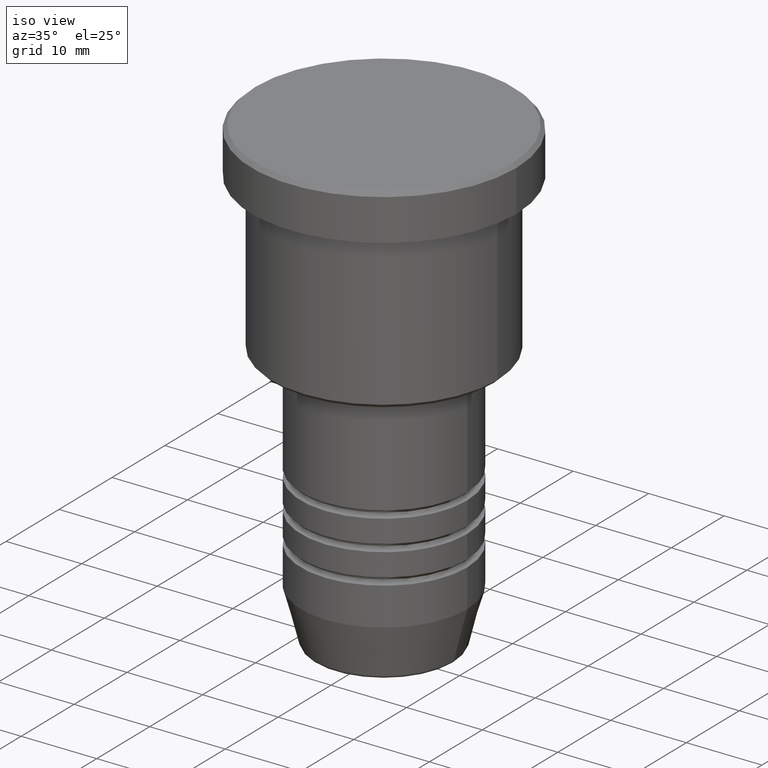
[diagram: clean part render]
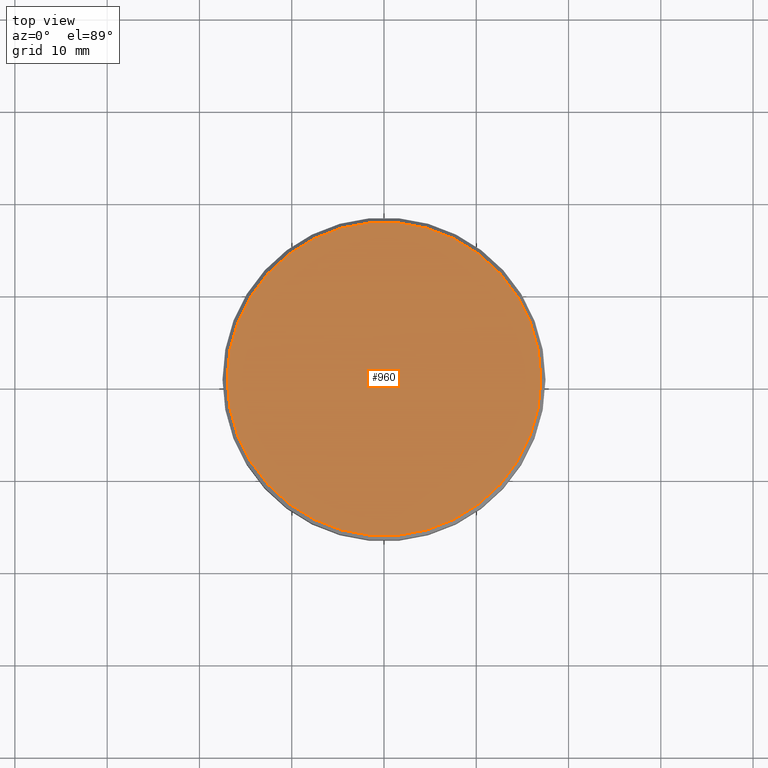
[diagram: tour spotlight — one face highlighted and labeled with its STEP entity id]
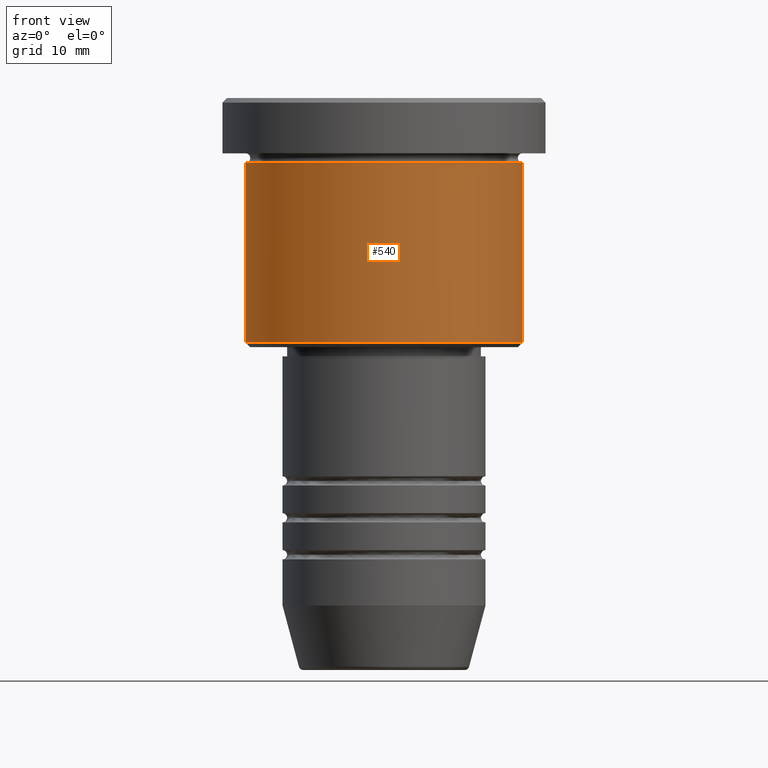
[diagram: tour spotlight — one face highlighted and labeled with its STEP entity id]
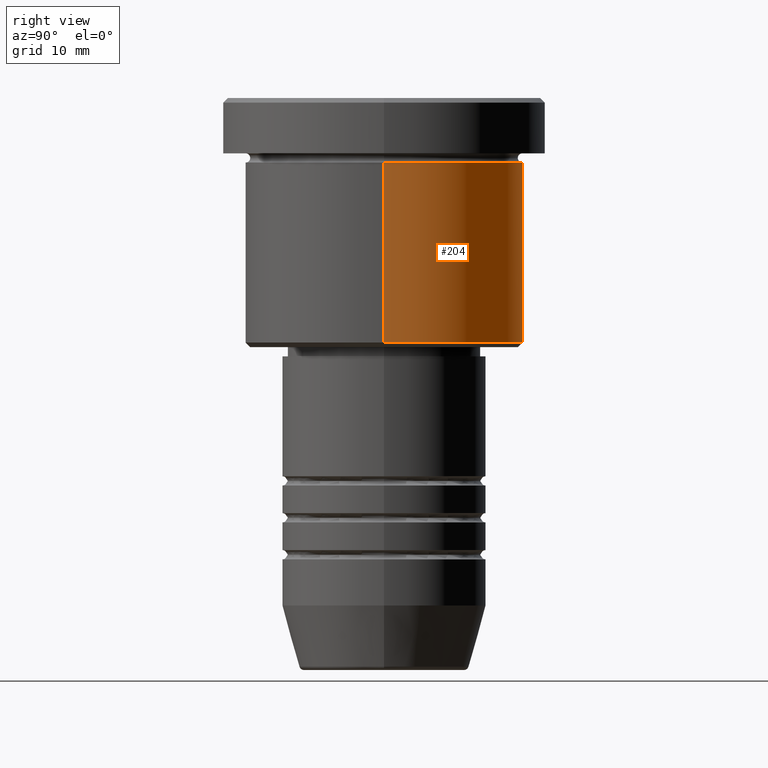
[diagram: tour spotlight — one face highlighted and labeled with its STEP entity id]
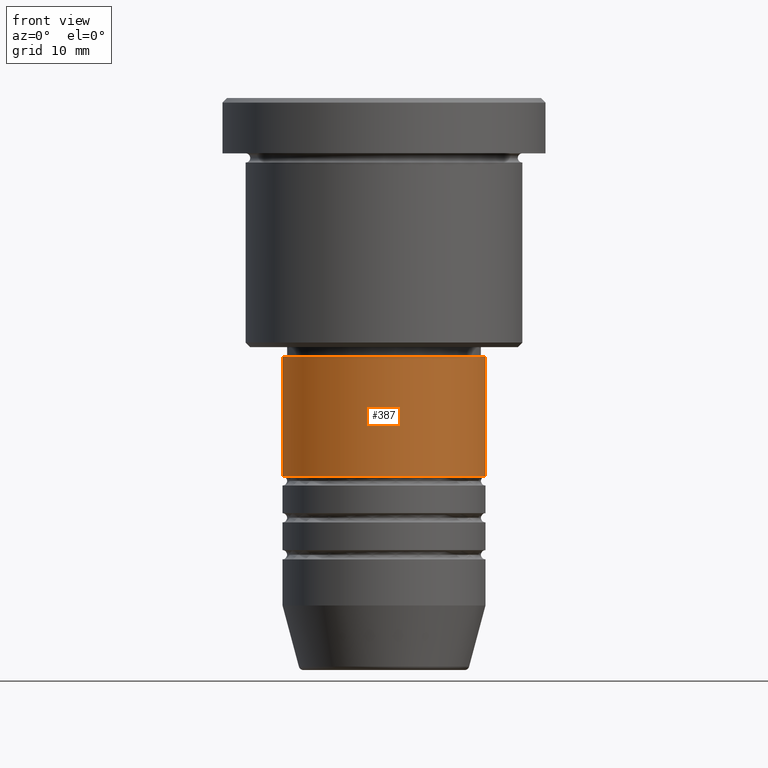
[diagram: tour spotlight — one face highlighted and labeled with its STEP entity id]
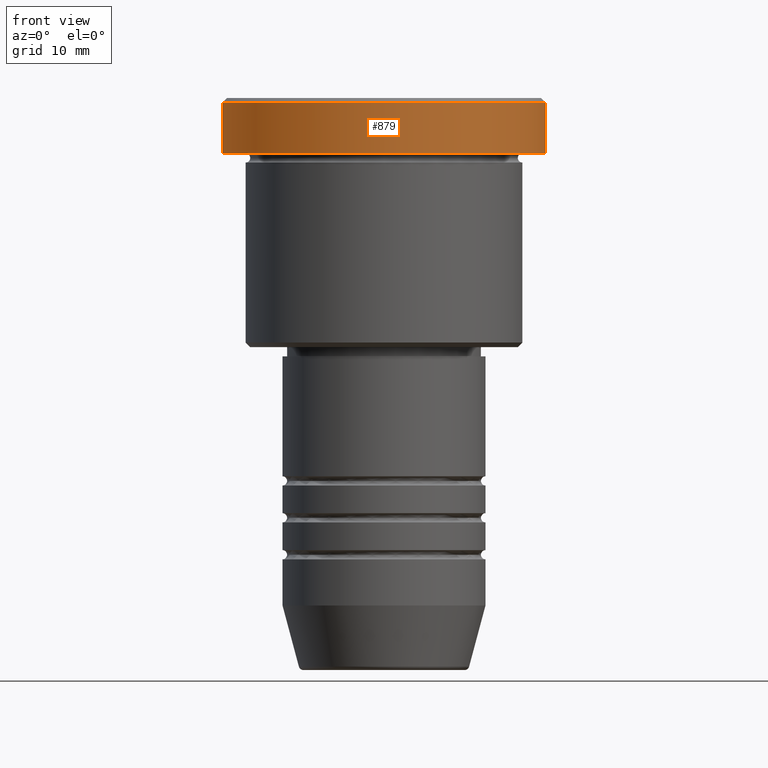
[diagram: tour spotlight — one face highlighted and labeled with its STEP entity id]
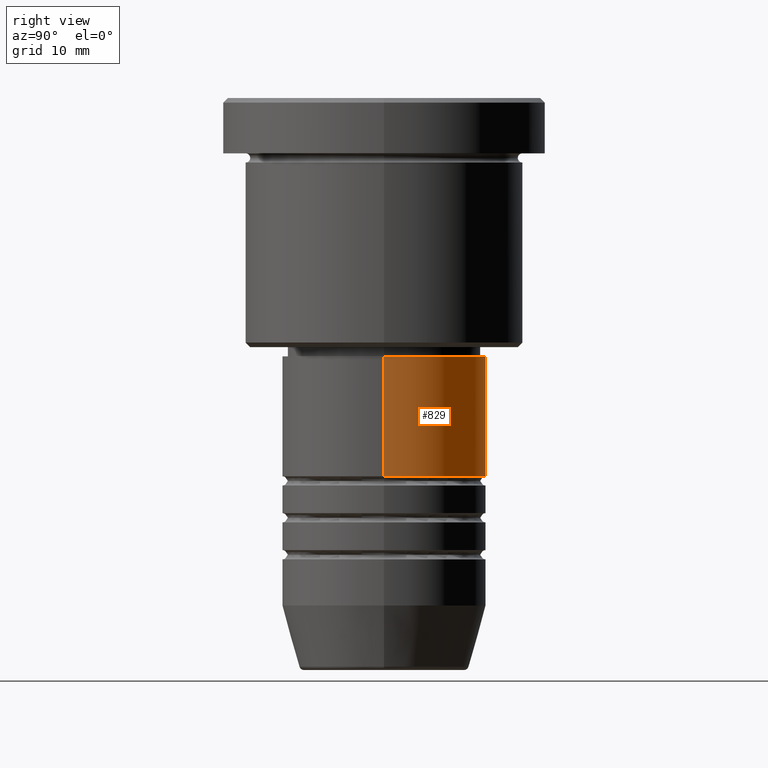
[diagram: tour spotlight — one face highlighted and labeled with its STEP entity id]
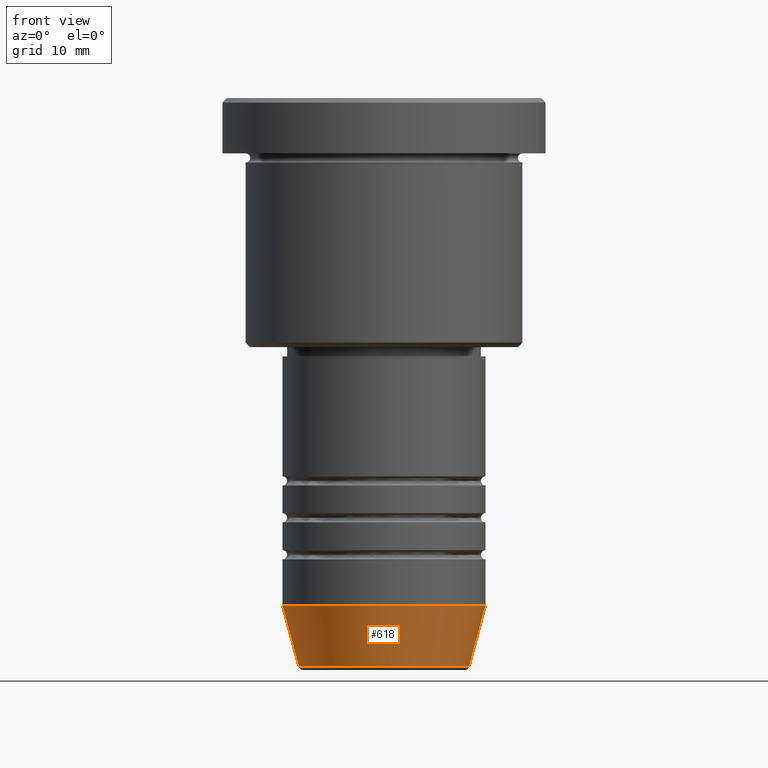
[diagram: tour spotlight — one face highlighted and labeled with its STEP entity id]
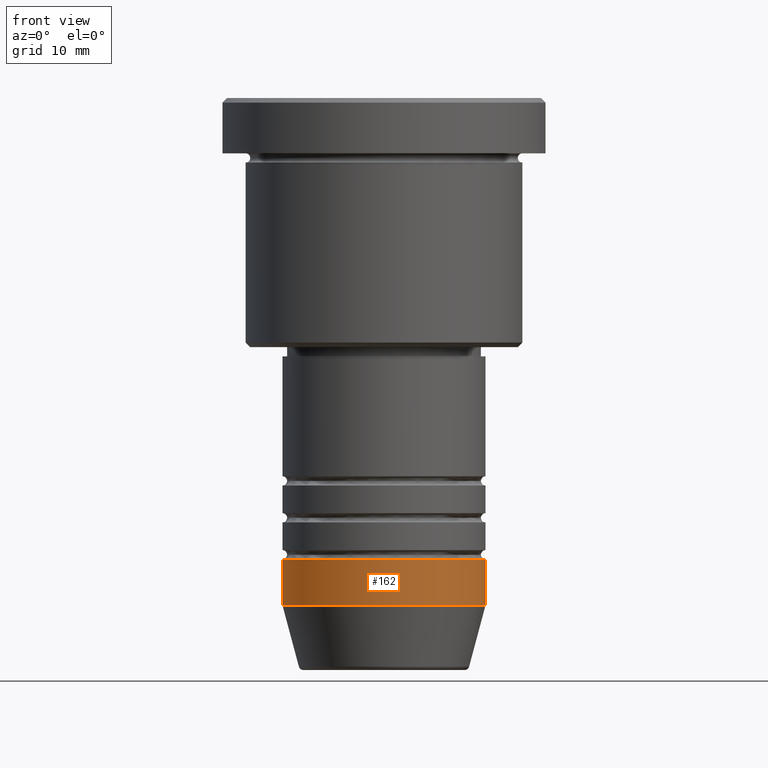
[diagram: tour spotlight — one face highlighted and labeled with its STEP entity id]
A machine part: a face-by-face anatomy tour. The part has 43 B-rep faces; the first image is the clean iso view, then the 8 largest visible faces are spotlighted one at a time (largest first), each with its STEP entity span.

Face 1 — top view, entity #960. In plain terms, the highlighted planar face has unit normal (0, -0, 1).
Definition (entity closure, byte-faithful):
#32 = CARTESIAN_POINT ( 'NONE',  ( 0.000000000000000000, 0.000000000000000000, 0.000000000000000000 ) ) ;
#40 = ORIENTED_EDGE ( 'NONE', *, *, #128, .T. ) ;
#45 = CARTESIAN_POINT ( 'NONE',  ( 0.000000000000000000, 0.000000000000000000, 0.000000000000000000 ) ) ;
#128 = EDGE_CURVE ( 'NONE', #741, #779, #1009, .T. ) ;
#155 = CARTESIAN_POINT ( 'NONE',  ( 0.000000000000000000, 0.000000000000000000, 0.000000000000000000 ) ) ;
#178 = EDGE_LOOP ( 'NONE', ( #1047, #40 ) ) ;
#235 = AXIS2_PLACEMENT_3D ( 'NONE', #32, #330, #679 ) ;
#295 = DIRECTION ( 'NONE',  ( 1.000000000000000000, 0.000000000000000000, 0.000000000000000000 ) ) ;
#324 = FACE_OUTER_BOUND ( 'NONE', #178, .T. ) ;
#330 = DIRECTION ( 'NONE',  ( -0.000000000000000000, -0.000000000000000000, 1.000000000000000000 ) ) ;
#352 = CARTESIAN_POINT ( 'NONE',  ( -16.99999999999999289, 0.000000000000000000, 0.000000000000000000 ) ) ;
#366 = AXIS2_PLACEMENT_3D ( 'NONE', #45, #757, #1115 ) ;
#648 = AXIS2_PLACEMENT_3D ( 'NONE', #155, #705, #295 ) ;
#679 = DIRECTION ( 'NONE',  ( 1.000000000000000000, 0.000000000000000000, 0.000000000000000000 ) ) ;
#705 = DIRECTION ( 'NONE',  ( -0.000000000000000000, -0.000000000000000000, 1.000000000000000000 ) ) ;
#741 = VERTEX_POINT ( 'NONE', #776 ) ;
#757 = DIRECTION ( 'NONE',  ( 0.000000000000000000, -0.000000000000000000, 1.000000000000000000 ) ) ;
#776 = CARTESIAN_POINT ( 'NONE',  ( 16.99999999999999289, 2.112515728529184067E-15, 0.000000000000000000 ) ) ;
#779 = VERTEX_POINT ( 'NONE', #352 ) ;
#939 = PLANE ( 'NONE',  #366 ) ;
#960 = ADVANCED_FACE ( 'NONE', ( #324 ), #939, .T. ) ;
#966 = EDGE_CURVE ( 'NONE', #779, #741, #989, .T. ) ;
#989 = CIRCLE ( 'NONE', #235, 16.99999999999999289 ) ;
#1009 = CIRCLE ( 'NONE', #648, 16.99999999999999289 ) ;
#1047 = ORIENTED_EDGE ( 'NONE', *, *, #966, .T. ) ;
#1115 = DIRECTION ( 'NONE',  ( 1.000000000000000000, 0.000000000000000000, 0.000000000000000000 ) ) ;

Face 2 — front view, entity #540. In plain terms, the highlighted cylindrical surface (partial cylindrical patch) has radius 15 mm, axis along (-0, -0, 1).
Definition (entity closure, byte-faithful):
#15 = VECTOR ( 'NONE', #1182, 1000.000000000000000 ) ;
#22 = DIRECTION ( 'NONE',  ( -0.000000000000000000, -0.000000000000000000, 1.000000000000000000 ) ) ;
#46 = CARTESIAN_POINT ( 'NONE',  ( 0.000000000000000000, 0.000000000000000000, -26.49999999999997868 ) ) ;
#64 = DIRECTION ( 'NONE',  ( -0.000000000000000000, -0.000000000000000000, 1.000000000000000000 ) ) ;
#79 = FACE_OUTER_BOUND ( 'NONE', #753, .T. ) ;
#83 = CARTESIAN_POINT ( 'NONE',  ( -15.00000000000000000, 1.836970198721029589E-15, -6.999999999999995559 ) ) ;
#113 = EDGE_CURVE ( 'NONE', #143, #842, #238, .T. ) ;
#143 = VERTEX_POINT ( 'NONE', #659 ) ;
#149 = AXIS2_PLACEMENT_3D ( 'NONE', #158, #64, #1068 ) ;
#158 = CARTESIAN_POINT ( 'NONE',  ( 0.000000000000000000, 0.000000000000000000, 0.000000000000000000 ) ) ;
#166 = CARTESIAN_POINT ( 'NONE',  ( 15.00000000000000000, 0.000000000000000000, -6.999999999999995559 ) ) ;
#207 = CARTESIAN_POINT ( 'NONE',  ( -15.00000000000000000, 1.836970198721029589E-15, 0.000000000000000000 ) ) ;
#238 = LINE ( 'NONE', #445, #15 ) ;
#286 = CIRCLE ( 'NONE', #545, 15.00000000000000000 ) ;
#307 = EDGE_CURVE ( 'NONE', #542, #842, #286, .T. ) ;
#402 = CIRCLE ( 'NONE', #1117, 15.00000000000000000 ) ;
#445 = CARTESIAN_POINT ( 'NONE',  ( 15.00000000000000000, 0.000000000000000000, 0.000000000000000000 ) ) ;
#537 = CYLINDRICAL_SURFACE ( 'NONE', #149, 15.00000000000000000 ) ;
#540 = ADVANCED_FACE ( 'NONE', ( #79 ), #537, .T. ) ;
#542 = VERTEX_POINT ( 'NONE', #83 ) ;
#545 = AXIS2_PLACEMENT_3D ( 'NONE', #649, #22, #568 ) ;
#568 = DIRECTION ( 'NONE',  ( 1.000000000000000000, 0.000000000000000000, 0.000000000000000000 ) ) ;
#604 = ORIENTED_EDGE ( 'NONE', *, *, #307, .F. ) ;
#649 = CARTESIAN_POINT ( 'NONE',  ( 0.000000000000000000, 0.000000000000000000, -6.999999999999995559 ) ) ;
#651 = DIRECTION ( 'NONE',  ( -0.000000000000000000, -0.000000000000000000, 1.000000000000000000 ) ) ;
#659 = CARTESIAN_POINT ( 'NONE',  ( 15.00000000000000000, 0.000000000000000000, -26.49999999999997868 ) ) ;
#664 = ORIENTED_EDGE ( 'NONE', *, *, #113, .T. ) ;
#692 = EDGE_CURVE ( 'NONE', #1104, #143, #402, .T. ) ;
#753 = EDGE_LOOP ( 'NONE', ( #1073, #1094, #664, #604 ) ) ;
#755 = CARTESIAN_POINT ( 'NONE',  ( -15.00000000000000000, 1.836970198721029589E-15, -26.49999999999997868 ) ) ;
#842 = VERTEX_POINT ( 'NONE', #166 ) ;
#944 = DIRECTION ( 'NONE',  ( -1.000000000000000000, 0.000000000000000000, 0.000000000000000000 ) ) ;
#1041 = EDGE_CURVE ( 'NONE', #1104, #542, #1090, .T. ) ;
#1048 = DIRECTION ( 'NONE',  ( -0.000000000000000000, -0.000000000000000000, 1.000000000000000000 ) ) ;
#1068 = DIRECTION ( 'NONE',  ( 1.000000000000000000, 0.000000000000000000, 0.000000000000000000 ) ) ;
#1073 = ORIENTED_EDGE ( 'NONE', *, *, #1041, .F. ) ;
#1081 = VECTOR ( 'NONE', #651, 1000.000000000000000 ) ;
#1090 = LINE ( 'NONE', #207, #1081 ) ;
#1094 = ORIENTED_EDGE ( 'NONE', *, *, #692, .T. ) ;
#1104 = VERTEX_POINT ( 'NONE', #755 ) ;
#1117 = AXIS2_PLACEMENT_3D ( 'NONE', #46, #1048, #944 ) ;
#1182 = DIRECTION ( 'NONE',  ( -0.000000000000000000, -0.000000000000000000, 1.000000000000000000 ) ) ;

Face 3 — right view, entity #204. In plain terms, the highlighted cylindrical surface (partial cylindrical patch) has radius 15 mm, axis along (-0, -0, 1).
Definition (entity closure, byte-faithful):
#15 = VECTOR ( 'NONE', #1182, 1000.000000000000000 ) ;
#31 = ORIENTED_EDGE ( 'NONE', *, *, #357, .F. ) ;
#34 = CIRCLE ( 'NONE', #1098, 15.00000000000000000 ) ;
#83 = CARTESIAN_POINT ( 'NONE',  ( -15.00000000000000000, 1.836970198721029589E-15, -6.999999999999995559 ) ) ;
#111 = DIRECTION ( 'NONE',  ( 1.000000000000000000, 0.000000000000000000, 0.000000000000000000 ) ) ;
#113 = EDGE_CURVE ( 'NONE', #143, #842, #238, .T. ) ;
#143 = VERTEX_POINT ( 'NONE', #659 ) ;
#159 = ORIENTED_EDGE ( 'NONE', *, *, #783, .T. ) ;
#161 = DIRECTION ( 'NONE',  ( -1.000000000000000000, 0.000000000000000000, 0.000000000000000000 ) ) ;
#166 = CARTESIAN_POINT ( 'NONE',  ( 15.00000000000000000, 0.000000000000000000, -6.999999999999995559 ) ) ;
#204 = ADVANCED_FACE ( 'NONE', ( #271 ), #710, .T. ) ;
#207 = CARTESIAN_POINT ( 'NONE',  ( -15.00000000000000000, 1.836970198721029589E-15, 0.000000000000000000 ) ) ;
#220 = DIRECTION ( 'NONE',  ( -0.000000000000000000, -0.000000000000000000, 1.000000000000000000 ) ) ;
#238 = LINE ( 'NONE', #445, #15 ) ;
#271 = FACE_OUTER_BOUND ( 'NONE', #302, .T. ) ;
#302 = EDGE_LOOP ( 'NONE', ( #159, #642, #31, #1015 ) ) ;
#357 = EDGE_CURVE ( 'NONE', #842, #542, #701, .T. ) ;
#428 = CARTESIAN_POINT ( 'NONE',  ( 0.000000000000000000, 0.000000000000000000, -26.49999999999997868 ) ) ;
#435 = AXIS2_PLACEMENT_3D ( 'NONE', #1028, #220, #111 ) ;
#445 = CARTESIAN_POINT ( 'NONE',  ( 15.00000000000000000, 0.000000000000000000, 0.000000000000000000 ) ) ;
#526 = CARTESIAN_POINT ( 'NONE',  ( 0.000000000000000000, 0.000000000000000000, 0.000000000000000000 ) ) ;
#539 = DIRECTION ( 'NONE',  ( -0.000000000000000000, -0.000000000000000000, 1.000000000000000000 ) ) ;
#542 = VERTEX_POINT ( 'NONE', #83 ) ;
#642 = ORIENTED_EDGE ( 'NONE', *, *, #1041, .T. ) ;
#651 = DIRECTION ( 'NONE',  ( -0.000000000000000000, -0.000000000000000000, 1.000000000000000000 ) ) ;
#659 = CARTESIAN_POINT ( 'NONE',  ( 15.00000000000000000, 0.000000000000000000, -26.49999999999997868 ) ) ;
#701 = CIRCLE ( 'NONE', #435, 15.00000000000000000 ) ;
#710 = CYLINDRICAL_SURFACE ( 'NONE', #782, 15.00000000000000000 ) ;
#755 = CARTESIAN_POINT ( 'NONE',  ( -15.00000000000000000, 1.836970198721029589E-15, -26.49999999999997868 ) ) ;
#782 = AXIS2_PLACEMENT_3D ( 'NONE', #526, #539, #1070 ) ;
#783 = EDGE_CURVE ( 'NONE', #143, #1104, #34, .T. ) ;
#842 = VERTEX_POINT ( 'NONE', #166 ) ;
#1015 = ORIENTED_EDGE ( 'NONE', *, *, #113, .F. ) ;
#1028 = CARTESIAN_POINT ( 'NONE',  ( 0.000000000000000000, 0.000000000000000000, -6.999999999999995559 ) ) ;
#1041 = EDGE_CURVE ( 'NONE', #1104, #542, #1090, .T. ) ;
#1070 = DIRECTION ( 'NONE',  ( 1.000000000000000000, 0.000000000000000000, 0.000000000000000000 ) ) ;
#1072 = DIRECTION ( 'NONE',  ( -0.000000000000000000, -0.000000000000000000, 1.000000000000000000 ) ) ;
#1081 = VECTOR ( 'NONE', #651, 1000.000000000000000 ) ;
#1090 = LINE ( 'NONE', #207, #1081 ) ;
#1098 = AXIS2_PLACEMENT_3D ( 'NONE', #428, #1072, #161 ) ;
#1104 = VERTEX_POINT ( 'NONE', #755 ) ;
#1182 = DIRECTION ( 'NONE',  ( -0.000000000000000000, -0.000000000000000000, 1.000000000000000000 ) ) ;

Face 4 — front view, entity #387. In plain terms, the highlighted cylindrical surface (partial cylindrical patch) has radius 11 mm, axis along (-0, -0, 1).
Definition (entity closure, byte-faithful):
#73 = EDGE_CURVE ( 'NONE', #1097, #736, #417, .T. ) ;
#119 = CARTESIAN_POINT ( 'NONE',  ( 11.00000000000000000, 0.000000000000000000, -40.99999999999989342 ) ) ;
#130 = CARTESIAN_POINT ( 'NONE',  ( -11.00000000000000000, 1.347111479062088405E-15, 0.000000000000000000 ) ) ;
#191 = AXIS2_PLACEMENT_3D ( 'NONE', #1038, #948, #875 ) ;
#219 = VECTOR ( 'NONE', #242, 1000.000000000000000 ) ;
#222 = EDGE_LOOP ( 'NONE', ( #276, #847, #947, #687 ) ) ;
#230 = FACE_OUTER_BOUND ( 'NONE', #222, .T. ) ;
#239 = CARTESIAN_POINT ( 'NONE',  ( 0.000000000000000000, 0.000000000000000000, 0.000000000000000000 ) ) ;
#242 = DIRECTION ( 'NONE',  ( -0.000000000000000000, -0.000000000000000000, 1.000000000000000000 ) ) ;
#276 = ORIENTED_EDGE ( 'NONE', *, *, #393, .F. ) ;
#341 = DIRECTION ( 'NONE',  ( -0.000000000000000000, -0.000000000000000000, 1.000000000000000000 ) ) ;
#387 = ADVANCED_FACE ( 'NONE', ( #230 ), #872, .T. ) ;
#393 = EDGE_CURVE ( 'NONE', #1110, #1052, #681, .T. ) ;
#417 = LINE ( 'NONE', #858, #219 ) ;
#475 = AXIS2_PLACEMENT_3D ( 'NONE', #239, #341, #778 ) ;
#512 = CIRCLE ( 'NONE', #191, 11.00000000000000000 ) ;
#521 = CARTESIAN_POINT ( 'NONE',  ( 0.000000000000000000, 0.000000000000000000, -40.99999999999989342 ) ) ;
#524 = EDGE_CURVE ( 'NONE', #1110, #1097, #868, .T. ) ;
#599 = DIRECTION ( 'NONE',  ( -0.000000000000000000, -0.000000000000000000, 1.000000000000000000 ) ) ;
#665 = AXIS2_PLACEMENT_3D ( 'NONE', #521, #976, #802 ) ;
#681 = LINE ( 'NONE', #130, #969 ) ;
#687 = ORIENTED_EDGE ( 'NONE', *, *, #711, .F. ) ;
#711 = EDGE_CURVE ( 'NONE', #1052, #736, #512, .T. ) ;
#736 = VERTEX_POINT ( 'NONE', #1146 ) ;
#778 = DIRECTION ( 'NONE',  ( 1.000000000000000000, 0.000000000000000000, 0.000000000000000000 ) ) ;
#802 = DIRECTION ( 'NONE',  ( 1.000000000000000000, 0.000000000000000000, 0.000000000000000000 ) ) ;
#825 = CARTESIAN_POINT ( 'NONE',  ( -11.00000000000000000, 1.347111479062088405E-15, -27.99999999999999645 ) ) ;
#847 = ORIENTED_EDGE ( 'NONE', *, *, #524, .T. ) ;
#858 = CARTESIAN_POINT ( 'NONE',  ( 11.00000000000000000, 0.000000000000000000, 0.000000000000000000 ) ) ;
#868 = CIRCLE ( 'NONE', #665, 11.00000000000000000 ) ;
#872 = CYLINDRICAL_SURFACE ( 'NONE', #475, 11.00000000000000000 ) ;
#875 = DIRECTION ( 'NONE',  ( 1.000000000000000000, 0.000000000000000000, 0.000000000000000000 ) ) ;
#947 = ORIENTED_EDGE ( 'NONE', *, *, #73, .T. ) ;
#948 = DIRECTION ( 'NONE',  ( -0.000000000000000000, -0.000000000000000000, 1.000000000000000000 ) ) ;
#969 = VECTOR ( 'NONE', #599, 1000.000000000000000 ) ;
#976 = DIRECTION ( 'NONE',  ( -0.000000000000000000, -0.000000000000000000, 1.000000000000000000 ) ) ;
#1002 = CARTESIAN_POINT ( 'NONE',  ( -11.00000000000000000, 1.347111479062088405E-15, -40.99999999999989342 ) ) ;
#1038 = CARTESIAN_POINT ( 'NONE',  ( 0.000000000000000000, 0.000000000000000000, -27.99999999999999645 ) ) ;
#1052 = VERTEX_POINT ( 'NONE', #825 ) ;
#1097 = VERTEX_POINT ( 'NONE', #119 ) ;
#1110 = VERTEX_POINT ( 'NONE', #1002 ) ;
#1146 = CARTESIAN_POINT ( 'NONE',  ( 11.00000000000000000, 0.000000000000000000, -27.99999999999999645 ) ) ;

Face 5 — front view, entity #879. In plain terms, the highlighted cylindrical surface (partial cylindrical patch) has radius 17.5 mm, axis along (-0, -0, 1).
Definition (entity closure, byte-faithful):
#5 = DIRECTION ( 'NONE',  ( 1.000000000000000000, 0.000000000000000000, 0.000000000000000000 ) ) ;
#33 = CIRCLE ( 'NONE', #898, 17.50000000000000000 ) ;
#44 = VERTEX_POINT ( 'NONE', #47 ) ;
#47 = CARTESIAN_POINT ( 'NONE',  ( -17.50000000000000000, 2.143131898507868248E-15, -0.5000000000000073275 ) ) ;
#150 = LINE ( 'NONE', #520, #932 ) ;
#171 = CIRCLE ( 'NONE', #646, 17.50000000000000000 ) ;
#175 = FACE_OUTER_BOUND ( 'NONE', #631, .T. ) ;
#205 = ORIENTED_EDGE ( 'NONE', *, *, #856, .T. ) ;
#300 = CARTESIAN_POINT ( 'NONE',  ( 0.000000000000000000, 0.000000000000000000, -0.5000000000000073275 ) ) ;
#316 = CARTESIAN_POINT ( 'NONE',  ( 0.000000000000000000, 0.000000000000000000, -5.999999999999995559 ) ) ;
#318 = LINE ( 'NONE', #397, #424 ) ;
#392 = ORIENTED_EDGE ( 'NONE', *, *, #1147, .T. ) ;
#397 = CARTESIAN_POINT ( 'NONE',  ( -17.50000000000000000, 2.143131898507868248E-15, 0.000000000000000000 ) ) ;
#423 = CARTESIAN_POINT ( 'NONE',  ( 17.50000000000000000, 0.000000000000000000, -0.5000000000000073275 ) ) ;
#424 = VECTOR ( 'NONE', #1131, 1000.000000000000000 ) ;
#429 = EDGE_CURVE ( 'NONE', #624, #433, #33, .T. ) ;
#431 = DIRECTION ( 'NONE',  ( -0.000000000000000000, -0.000000000000000000, 1.000000000000000000 ) ) ;
#433 = VERTEX_POINT ( 'NONE', #676 ) ;
#499 = DIRECTION ( 'NONE',  ( 1.000000000000000000, 0.000000000000000000, 0.000000000000000000 ) ) ;
#503 = CARTESIAN_POINT ( 'NONE',  ( -17.50000000000000000, 2.143131898507868248E-15, -5.999999999999995559 ) ) ;
#520 = CARTESIAN_POINT ( 'NONE',  ( 17.50000000000000000, 0.000000000000000000, 0.000000000000000000 ) ) ;
#535 = DIRECTION ( 'NONE',  ( -0.000000000000000000, -0.000000000000000000, 1.000000000000000000 ) ) ;
#624 = VERTEX_POINT ( 'NONE', #503 ) ;
#631 = EDGE_LOOP ( 'NONE', ( #733, #729, #205, #392 ) ) ;
#646 = AXIS2_PLACEMENT_3D ( 'NONE', #300, #929, #5 ) ;
#669 = AXIS2_PLACEMENT_3D ( 'NONE', #901, #535, #906 ) ;
#676 = CARTESIAN_POINT ( 'NONE',  ( 17.50000000000000000, 0.000000000000000000, -5.999999999999995559 ) ) ;
#712 = CYLINDRICAL_SURFACE ( 'NONE', #669, 17.50000000000000000 ) ;
#729 = ORIENTED_EDGE ( 'NONE', *, *, #429, .T. ) ;
#733 = ORIENTED_EDGE ( 'NONE', *, *, #930, .F. ) ;
#746 = VERTEX_POINT ( 'NONE', #423 ) ;
#856 = EDGE_CURVE ( 'NONE', #433, #746, #150, .T. ) ;
#879 = ADVANCED_FACE ( 'NONE', ( #175 ), #712, .T. ) ;
#898 = AXIS2_PLACEMENT_3D ( 'NONE', #316, #1050, #499 ) ;
#901 = CARTESIAN_POINT ( 'NONE',  ( 0.000000000000000000, 0.000000000000000000, 0.000000000000000000 ) ) ;
#906 = DIRECTION ( 'NONE',  ( 1.000000000000000000, 0.000000000000000000, 0.000000000000000000 ) ) ;
#929 = DIRECTION ( 'NONE',  ( 0.000000000000000000, 0.000000000000000000, -1.000000000000000000 ) ) ;
#930 = EDGE_CURVE ( 'NONE', #624, #44, #318, .T. ) ;
#932 = VECTOR ( 'NONE', #431, 1000.000000000000000 ) ;
#1050 = DIRECTION ( 'NONE',  ( -0.000000000000000000, -0.000000000000000000, 1.000000000000000000 ) ) ;
#1131 = DIRECTION ( 'NONE',  ( -0.000000000000000000, -0.000000000000000000, 1.000000000000000000 ) ) ;
#1147 = EDGE_CURVE ( 'NONE', #746, #44, #171, .T. ) ;

Face 6 — right view, entity #829. In plain terms, the highlighted cylindrical surface (partial cylindrical patch) has radius 11 mm, axis along (-0, -0, 1).
Definition (entity closure, byte-faithful):
#73 = EDGE_CURVE ( 'NONE', #1097, #736, #417, .T. ) ;
#119 = CARTESIAN_POINT ( 'NONE',  ( 11.00000000000000000, 0.000000000000000000, -40.99999999999989342 ) ) ;
#130 = CARTESIAN_POINT ( 'NONE',  ( -11.00000000000000000, 1.347111479062088405E-15, 0.000000000000000000 ) ) ;
#219 = VECTOR ( 'NONE', #242, 1000.000000000000000 ) ;
#234 = CARTESIAN_POINT ( 'NONE',  ( 0.000000000000000000, 0.000000000000000000, -40.99999999999989342 ) ) ;
#242 = DIRECTION ( 'NONE',  ( -0.000000000000000000, -0.000000000000000000, 1.000000000000000000 ) ) ;
#248 = ORIENTED_EDGE ( 'NONE', *, *, #73, .F. ) ;
#319 = DIRECTION ( 'NONE',  ( -0.000000000000000000, -0.000000000000000000, 1.000000000000000000 ) ) ;
#326 = DIRECTION ( 'NONE',  ( -0.000000000000000000, -0.000000000000000000, 1.000000000000000000 ) ) ;
#393 = EDGE_CURVE ( 'NONE', #1110, #1052, #681, .T. ) ;
#411 = CARTESIAN_POINT ( 'NONE',  ( 0.000000000000000000, 0.000000000000000000, -27.99999999999999645 ) ) ;
#417 = LINE ( 'NONE', #858, #219 ) ;
#443 = FACE_OUTER_BOUND ( 'NONE', #682, .T. ) ;
#467 = ORIENTED_EDGE ( 'NONE', *, *, #702, .T. ) ;
#599 = DIRECTION ( 'NONE',  ( -0.000000000000000000, -0.000000000000000000, 1.000000000000000000 ) ) ;
#680 = DIRECTION ( 'NONE',  ( 1.000000000000000000, 0.000000000000000000, 0.000000000000000000 ) ) ;
#681 = LINE ( 'NONE', #130, #969 ) ;
#682 = EDGE_LOOP ( 'NONE', ( #467, #803, #1167, #248 ) ) ;
#683 = DIRECTION ( 'NONE',  ( 1.000000000000000000, 0.000000000000000000, 0.000000000000000000 ) ) ;
#702 = EDGE_CURVE ( 'NONE', #1097, #1110, #865, .T. ) ;
#726 = EDGE_CURVE ( 'NONE', #736, #1052, #1080, .T. ) ;
#736 = VERTEX_POINT ( 'NONE', #1146 ) ;
#780 = AXIS2_PLACEMENT_3D ( 'NONE', #808, #1067, #1169 ) ;
#800 = CYLINDRICAL_SURFACE ( 'NONE', #780, 11.00000000000000000 ) ;
#803 = ORIENTED_EDGE ( 'NONE', *, *, #393, .T. ) ;
#808 = CARTESIAN_POINT ( 'NONE',  ( 0.000000000000000000, 0.000000000000000000, 0.000000000000000000 ) ) ;
#825 = CARTESIAN_POINT ( 'NONE',  ( -11.00000000000000000, 1.347111479062088405E-15, -27.99999999999999645 ) ) ;
#829 = ADVANCED_FACE ( 'NONE', ( #443 ), #800, .T. ) ;
#840 = AXIS2_PLACEMENT_3D ( 'NONE', #234, #319, #680 ) ;
#858 = CARTESIAN_POINT ( 'NONE',  ( 11.00000000000000000, 0.000000000000000000, 0.000000000000000000 ) ) ;
#865 = CIRCLE ( 'NONE', #840, 11.00000000000000000 ) ;
#969 = VECTOR ( 'NONE', #599, 1000.000000000000000 ) ;
#1002 = CARTESIAN_POINT ( 'NONE',  ( -11.00000000000000000, 1.347111479062088405E-15, -40.99999999999989342 ) ) ;
#1052 = VERTEX_POINT ( 'NONE', #825 ) ;
#1067 = DIRECTION ( 'NONE',  ( -0.000000000000000000, -0.000000000000000000, 1.000000000000000000 ) ) ;
#1080 = CIRCLE ( 'NONE', #1155, 11.00000000000000000 ) ;
#1097 = VERTEX_POINT ( 'NONE', #119 ) ;
#1110 = VERTEX_POINT ( 'NONE', #1002 ) ;
#1146 = CARTESIAN_POINT ( 'NONE',  ( 11.00000000000000000, 0.000000000000000000, -27.99999999999999645 ) ) ;
#1155 = AXIS2_PLACEMENT_3D ( 'NONE', #411, #326, #683 ) ;
#1167 = ORIENTED_EDGE ( 'NONE', *, *, #726, .F. ) ;
#1169 = DIRECTION ( 'NONE',  ( 1.000000000000000000, 0.000000000000000000, 0.000000000000000000 ) ) ;

Face 7 — front view, entity #618. In plain terms, the highlighted conical surface has half-angle 15 deg.
Definition (entity closure, byte-faithful):
#133 = CARTESIAN_POINT ( 'NONE',  ( 9.223655072137185940, 0.000000000000000000, -61.62940952255126348 ) ) ;
#231 = VERTEX_POINT ( 'NONE', #818 ) ;
#252 = CONICAL_SURFACE ( 'NONE', #347, 11.00000000000000000, 0.2617993877991502960 ) ;
#267 = VECTOR ( 'NONE', #1126, 1000.000000000000114 ) ;
#294 = EDGE_LOOP ( 'NONE', ( #806, #770, #620, #1152 ) ) ;
#311 = CIRCLE ( 'NONE', #689, 9.223655072137185940 ) ;
#347 = AXIS2_PLACEMENT_3D ( 'NONE', #880, #758, #962 ) ;
#418 = DIRECTION ( 'NONE',  ( 1.000000000000000000, 0.000000000000000000, 0.000000000000000000 ) ) ;
#422 = EDGE_CURVE ( 'NONE', #1106, #231, #511, .T. ) ;
#432 = CARTESIAN_POINT ( 'NONE',  ( 11.00000000000000000, 0.000000000000000000, -55.00000000000000000 ) ) ;
#453 = VECTOR ( 'NONE', #708, 1000.000000000000114 ) ;
#502 = DIRECTION ( 'NONE',  ( -0.000000000000000000, -0.000000000000000000, 1.000000000000000000 ) ) ;
#511 = CIRCLE ( 'NONE', #1178, 11.00000000000000000 ) ;
#544 = EDGE_CURVE ( 'NONE', #955, #231, #634, .T. ) ;
#576 = CARTESIAN_POINT ( 'NONE',  ( -9.223655072137185940, 1.238341722557647004E-15, -61.62940952255126348 ) ) ;
#582 = LINE ( 'NONE', #768, #267 ) ;
#595 = CARTESIAN_POINT ( 'NONE',  ( 0.000000000000000000, 0.000000000000000000, -61.62940952255126348 ) ) ;
#618 = ADVANCED_FACE ( 'NONE', ( #940 ), #252, .T. ) ;
#620 = ORIENTED_EDGE ( 'NONE', *, *, #544, .T. ) ;
#634 = LINE ( 'NONE', #432, #453 ) ;
#668 = CARTESIAN_POINT ( 'NONE',  ( -11.00000000000000000, 1.347111479062088405E-15, -55.00000000000000000 ) ) ;
#678 = EDGE_CURVE ( 'NONE', #943, #1106, #582, .T. ) ;
#689 = AXIS2_PLACEMENT_3D ( 'NONE', #595, #502, #860 ) ;
#708 = DIRECTION ( 'NONE',  ( 0.2588190451025215166, 0.000000000000000000, 0.9659258262890679791 ) ) ;
#758 = DIRECTION ( 'NONE',  ( -0.000000000000000000, -0.000000000000000000, 1.000000000000000000 ) ) ;
#768 = CARTESIAN_POINT ( 'NONE',  ( -11.00000000000000000, 1.347111479062088405E-15, -55.00000000000000000 ) ) ;
#770 = ORIENTED_EDGE ( 'NONE', *, *, #950, .T. ) ;
#806 = ORIENTED_EDGE ( 'NONE', *, *, #678, .F. ) ;
#818 = CARTESIAN_POINT ( 'NONE',  ( 11.00000000000000000, 0.000000000000000000, -55.00000000000000000 ) ) ;
#860 = DIRECTION ( 'NONE',  ( 1.000000000000000000, 0.000000000000000000, 0.000000000000000000 ) ) ;
#880 = CARTESIAN_POINT ( 'NONE',  ( 0.000000000000000000, 0.000000000000000000, -55.00000000000000000 ) ) ;
#940 = FACE_OUTER_BOUND ( 'NONE', #294, .T. ) ;
#943 = VERTEX_POINT ( 'NONE', #576 ) ;
#950 = EDGE_CURVE ( 'NONE', #943, #955, #311, .T. ) ;
#955 = VERTEX_POINT ( 'NONE', #133 ) ;
#959 = DIRECTION ( 'NONE',  ( -0.000000000000000000, -0.000000000000000000, 1.000000000000000000 ) ) ;
#962 = DIRECTION ( 'NONE',  ( 1.000000000000000000, 0.000000000000000000, 0.000000000000000000 ) ) ;
#1054 = CARTESIAN_POINT ( 'NONE',  ( 0.000000000000000000, 0.000000000000000000, -55.00000000000000000 ) ) ;
#1106 = VERTEX_POINT ( 'NONE', #668 ) ;
#1126 = DIRECTION ( 'NONE',  ( -0.2588190451025215166, 3.169619151431774802E-17, 0.9659258262890679791 ) ) ;
#1152 = ORIENTED_EDGE ( 'NONE', *, *, #422, .F. ) ;
#1178 = AXIS2_PLACEMENT_3D ( 'NONE', #1054, #959, #418 ) ;

Face 8 — front view, entity #162. In plain terms, the highlighted cylindrical surface (partial cylindrical patch) has radius 11 mm, axis along (-0, -0, 1).
Definition (entity closure, byte-faithful):
#24 = DIRECTION ( 'NONE',  ( -0.000000000000000000, -0.000000000000000000, 1.000000000000000000 ) ) ;
#25 = EDGE_LOOP ( 'NONE', ( #1040, #259, #103, #1020 ) ) ;
#54 = CARTESIAN_POINT ( 'NONE',  ( -11.00000000000000000, 1.347111479062088405E-15, -50.00000000000000000 ) ) ;
#92 = DIRECTION ( 'NONE',  ( 1.000000000000000000, 0.000000000000000000, 0.000000000000000000 ) ) ;
#93 = VECTOR ( 'NONE', #551, 1000.000000000000000 ) ;
#103 = ORIENTED_EDGE ( 'NONE', *, *, #1085, .T. ) ;
#162 = ADVANCED_FACE ( 'NONE', ( #715 ), #169, .T. ) ;
#169 = CYLINDRICAL_SURFACE ( 'NONE', #349, 11.00000000000000000 ) ;
#179 = DIRECTION ( 'NONE',  ( 1.000000000000000000, 0.000000000000000000, 0.000000000000000000 ) ) ;
#231 = VERTEX_POINT ( 'NONE', #818 ) ;
#233 = VECTOR ( 'NONE', #722, 1000.000000000000000 ) ;
#253 = AXIS2_PLACEMENT_3D ( 'NONE', #853, #24, #92 ) ;
#259 = ORIENTED_EDGE ( 'NONE', *, *, #422, .T. ) ;
#306 = CARTESIAN_POINT ( 'NONE',  ( 11.00000000000000000, 0.000000000000000000, 0.000000000000000000 ) ) ;
#349 = AXIS2_PLACEMENT_3D ( 'NONE', #457, #617, #179 ) ;
#379 = VERTEX_POINT ( 'NONE', #54 ) ;
#418 = DIRECTION ( 'NONE',  ( 1.000000000000000000, 0.000000000000000000, 0.000000000000000000 ) ) ;
#421 = CIRCLE ( 'NONE', #253, 11.00000000000000000 ) ;
#422 = EDGE_CURVE ( 'NONE', #1106, #231, #511, .T. ) ;
#457 = CARTESIAN_POINT ( 'NONE',  ( 0.000000000000000000, 0.000000000000000000, 0.000000000000000000 ) ) ;
#511 = CIRCLE ( 'NONE', #1178, 11.00000000000000000 ) ;
#551 = DIRECTION ( 'NONE',  ( -0.000000000000000000, -0.000000000000000000, 1.000000000000000000 ) ) ;
#588 = CARTESIAN_POINT ( 'NONE',  ( 11.00000000000000000, 0.000000000000000000, -50.00000000000000000 ) ) ;
#606 = LINE ( 'NONE', #614, #233 ) ;
#608 = VERTEX_POINT ( 'NONE', #588 ) ;
#614 = CARTESIAN_POINT ( 'NONE',  ( -11.00000000000000000, 1.347111479062088405E-15, 0.000000000000000000 ) ) ;
#617 = DIRECTION ( 'NONE',  ( -0.000000000000000000, -0.000000000000000000, 1.000000000000000000 ) ) ;
#668 = CARTESIAN_POINT ( 'NONE',  ( -11.00000000000000000, 1.347111479062088405E-15, -55.00000000000000000 ) ) ;
#715 = FACE_OUTER_BOUND ( 'NONE', #25, .T. ) ;
#722 = DIRECTION ( 'NONE',  ( -0.000000000000000000, -0.000000000000000000, 1.000000000000000000 ) ) ;
#818 = CARTESIAN_POINT ( 'NONE',  ( 11.00000000000000000, 0.000000000000000000, -55.00000000000000000 ) ) ;
#836 = EDGE_CURVE ( 'NONE', #1106, #379, #606, .T. ) ;
#853 = CARTESIAN_POINT ( 'NONE',  ( 0.000000000000000000, 0.000000000000000000, -50.00000000000000000 ) ) ;
#959 = DIRECTION ( 'NONE',  ( -0.000000000000000000, -0.000000000000000000, 1.000000000000000000 ) ) ;
#1020 = ORIENTED_EDGE ( 'NONE', *, *, #1056, .F. ) ;
#1040 = ORIENTED_EDGE ( 'NONE', *, *, #836, .F. ) ;
#1054 = CARTESIAN_POINT ( 'NONE',  ( 0.000000000000000000, 0.000000000000000000, -55.00000000000000000 ) ) ;
#1056 = EDGE_CURVE ( 'NONE', #379, #608, #421, .T. ) ;
#1085 = EDGE_CURVE ( 'NONE', #231, #608, #1096, .T. ) ;
#1096 = LINE ( 'NONE', #306, #93 ) ;
#1106 = VERTEX_POINT ( 'NONE', #668 ) ;
#1178 = AXIS2_PLACEMENT_3D ( 'NONE', #1054, #959, #418 ) ;